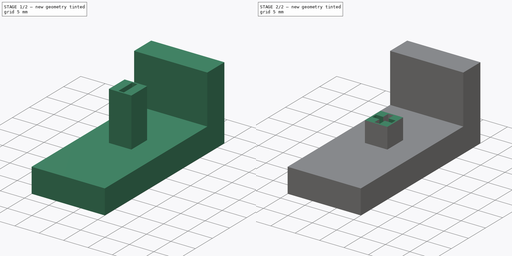
[diagram: build sequence overview — one tinted view per stage of 2, left to right]
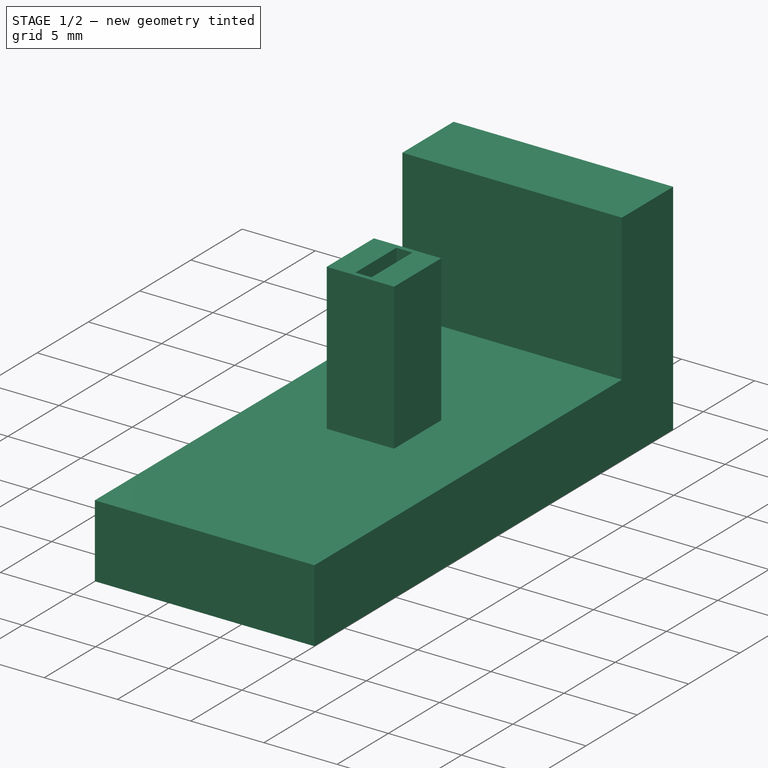
[diagram: stage 1 of 2 — iso view after this stage's code; geometry added in this stage tinted green]
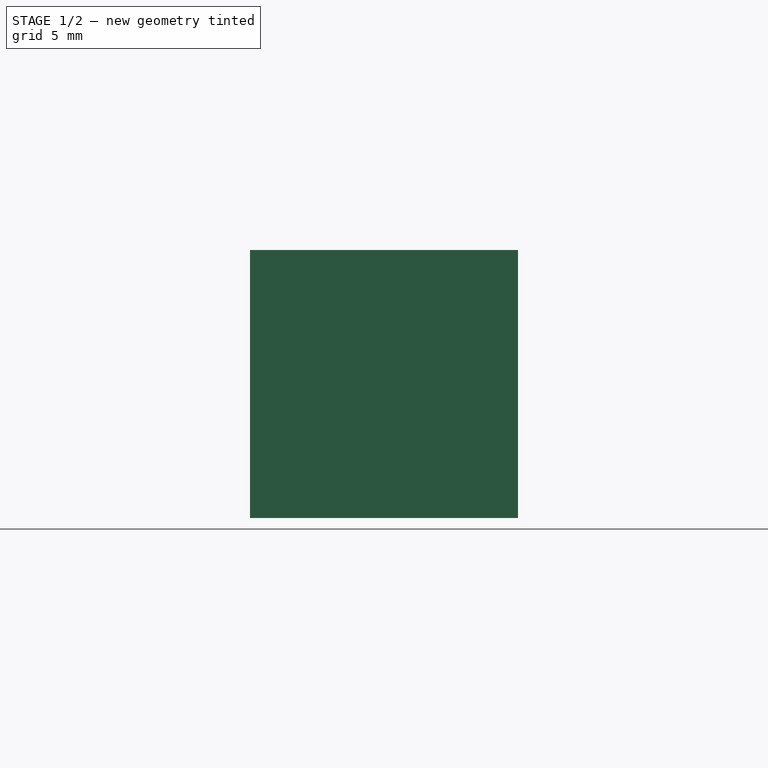
[diagram: stage 1 of 2 — front view after this stage's code; geometry added in this stage tinted green]
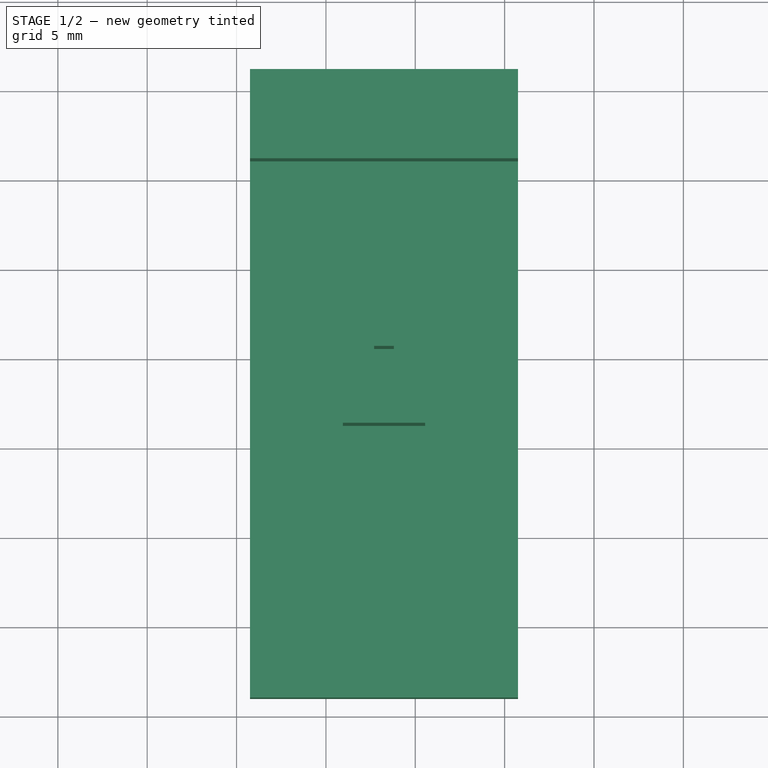
[diagram: stage 1 of 2 — top view after this stage's code; geometry added in this stage tinted green]
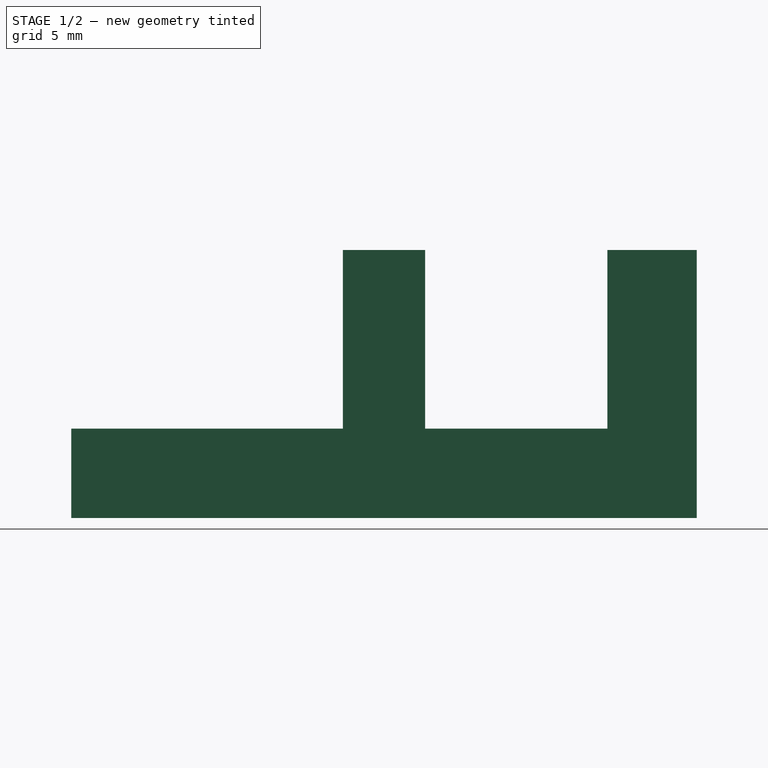
[diagram: stage 1 of 2 — right view after this stage's code; geometry added in this stage tinted green]
FCSTD DOCUMENT  (FreeCAD 0.20R29603 (Git))
Label: BlackKey
License: All rights reserved
LicenseURL: http://en.wikipedia.org/wiki/All_rights_reserved
objects: Sketcher::SketchObject×4, PartDesign::Pocket×3, PartDesign::Pad×1, PartDesign::Plane×1, PartDesign::Body×1
note: 14 computed .brp shape members not serialized (recipe doc carries the construction recipe); baked Part::Feature solids carry a one-line shape summary decoded from their .brp

FEATURE [Sketcher::SketchObject] Sketch
  FullyConstrained = true
  MapMode = 5
  Support = -> [XY_Plane]
  sketch-geometry (4):
    g0: LineSegment StartX=55.75 StartY=-79 StartZ=0 EndX=70.75 EndY=-79 EndZ=0
    g1: LineSegment StartX=70.75 StartY=-79 StartZ=0 EndX=70.75 EndY=-114 EndZ=0
    g2: LineSegment StartX=70.75 StartY=-114 StartZ=0 EndX=55.75 EndY=-114 EndZ=0
    g3: LineSegment StartX=55.75 StartY=-114 StartZ=0 EndX=55.75 EndY=-79 EndZ=0
  constraints (12):
    c: Coincident(g0,g1)
    c: Coincident(g1,g2)
    c: Coincident(g2,g3)
    c: Coincident(g3,g0)
    c: Horizontal(g0)
    c: Horizontal(g2)
    c: Vertical(g1)
    c: Vertical(g3)
    c: DistanceY(g0,g-1) = 79
    c: DistanceX(g-1,g0) = 55.75
    c: DistanceX(g-1,g1) = 70.75
    c: DistanceY(g1,g-1) = 114
FEATURE [PartDesign::Pad] Pad
  Direction = (0,0,1)
  Length = 15
  Length2 = 10
  Profile = -> Sketch
  ReferenceAxis = -> Sketch [N_Axis]
  Type = 0
FEATURE [PartDesign::Plane] DatumPlane
  Length = 118.823
  MapMode = 5
  Placement = pos=(0,0,15) rot=(0,0,1;0rad)
  ResizeMode = 0
  Support = -> [Pad]
  Width = 162.073
FEATURE [Sketcher::SketchObject] Sketch001
  FullyConstrained = true
  MapMode = 5
  Placement = pos=(0,0,15) rot=(0,0,1;0rad)
  Support = -> [DatumPlane]
  sketch-geometry (15):
    g0: LineSegment StartX=50 StartY=-120 StartZ=0 EndX=75 EndY=-120 EndZ=0
    g1: LineSegment StartX=75 StartY=-120 StartZ=0 EndX=75 EndY=-84 EndZ=0
    g2: LineSegment StartX=75 StartY=-84 StartZ=0 EndX=50 EndY=-84 EndZ=0
    g3: LineSegment StartX=50 StartY=-84 StartZ=0 EndX=50 EndY=-120 EndZ=0
    g4: LineSegment StartX=60.95 StartY=-94.2 StartZ=0 EndX=65.55 EndY=-94.2 EndZ=0
    g5: LineSegment StartX=65.55 StartY=-94.2 StartZ=0 EndX=65.55 EndY=-98.8 EndZ=0
    g6: LineSegment StartX=65.55 StartY=-98.8 StartZ=0 EndX=60.95 EndY=-98.8 EndZ=0
    g7: LineSegment StartX=60.95 StartY=-98.8 StartZ=0 EndX=60.95 EndY=-94.2 EndZ=0
    g8: GeomPoint X=63.25 Y=-96.5 Z=0
    g9: LineSegment StartX=62.7 StartY=-94.5 StartZ=0 EndX=63.8 EndY=-94.5 EndZ=0
    g10: LineSegment StartX=63.8 StartY=-94.5 StartZ=0 EndX=63.8 EndY=-98.5 EndZ=0
    g11: LineSegment StartX=63.8 StartY=-98.5 StartZ=0 EndX=62.7 EndY=-98.5 EndZ=0
    g12: LineSegment StartX=62.7 StartY=-98.5 StartZ=0 EndX=62.7 EndY=-94.5 EndZ=0
    g13: GeomPoint X=63.25 Y=-96.5 Z=0
    g14: GeomPoint X=63.25 Y=-96.5 Z=0
  constraints (40):
    c: Coincident(g0,g1)
    c: Coincident(g1,g2)
    c: Coincident(g2,g3)
    c: Coincident(g3,g0)
    c: Horizontal(g0)
    c: Horizontal(g2)
    c: Vertical(g1)
    c: Vertical(g3)
    c: DistanceX(g-1,g1) = 75
    c: DistanceY(g0,g-1) = 120
    c: DistanceY(g1,g-1) = 84
    c: DistanceX(g-1,g0) = 50
    c: Coincident(g4,g5)
    c: Coincident(g5,g6)
    c: Coincident(g6,g7)
    c: Coincident(g7,g4)
    c: Horizontal(g4)
    c: Horizontal(g6)
    c: Vertical(g5)
    c: Vertical(g7)
    c: DistanceX(g4,g4) = 4.6
    c: DistanceY(g5,g5) = 4.6
    c: Symmetric(g4,g6,g8)
    c: DistanceX(g-1,g8) = 63.25
    c: DistanceY(g8,g-1) = 96.5
    c: Coincident(g9,g10)
    c: Coincident(g10,g11)
    c: Coincident(g11,g12)
    c: Coincident(g12,g9)
    c: Horizontal(g9)
    c: Horizontal(g11)
    c: Vertical(g10)
    c: Vertical(g12)
    c: Symmetric(g9,g11,g13)
    c: DistanceX(g9,g9) = 1.1
    c: DistanceY(g10,g10) = 4
    c: DistanceX(g-1,g13) = 63.25
    c: DistanceY(g13,g-1) = 96.5
    c: DistanceX(g-1,g14) = 63.25
    c: DistanceY(g14,g-1) = 96.5
FEATURE [PartDesign::Pocket] Pocket
  BaseFeature = -> Pad
  Direction = (0,0,-1)
  Length = 10
  Length2 = 5
  Profile = -> Sketch001
  ReferenceAxis = -> Sketch001 [N_Axis]
  Type = 0
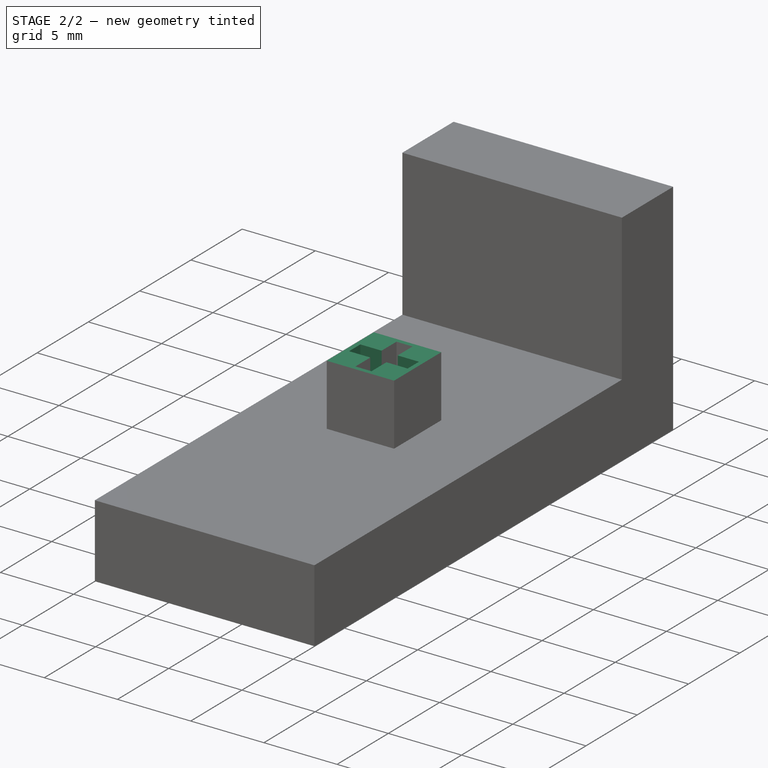
[diagram: stage 2 of 2 — iso view after this stage's code; geometry added in this stage tinted green]
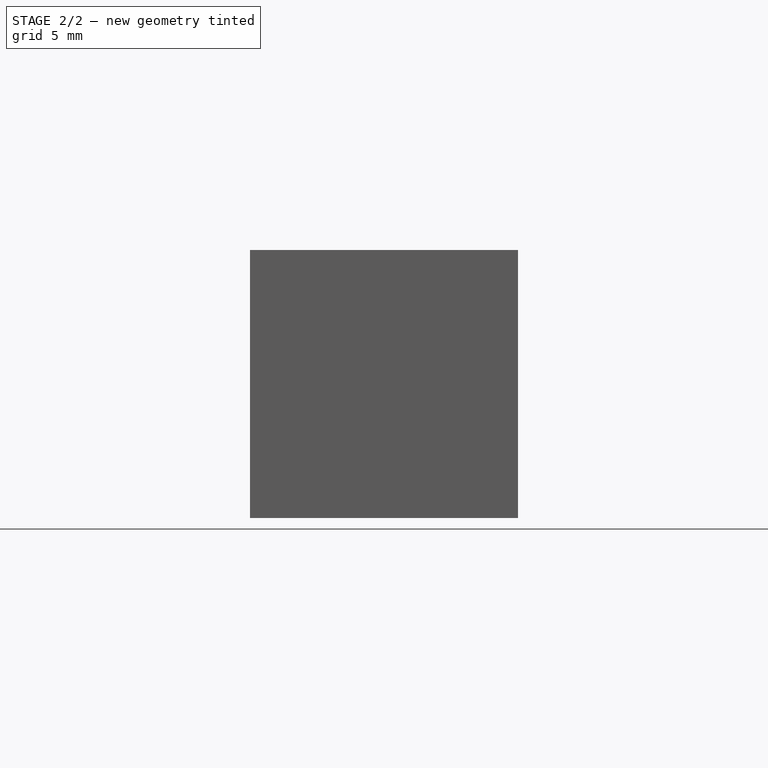
[diagram: stage 2 of 2 — front view after this stage's code; geometry added in this stage tinted green]
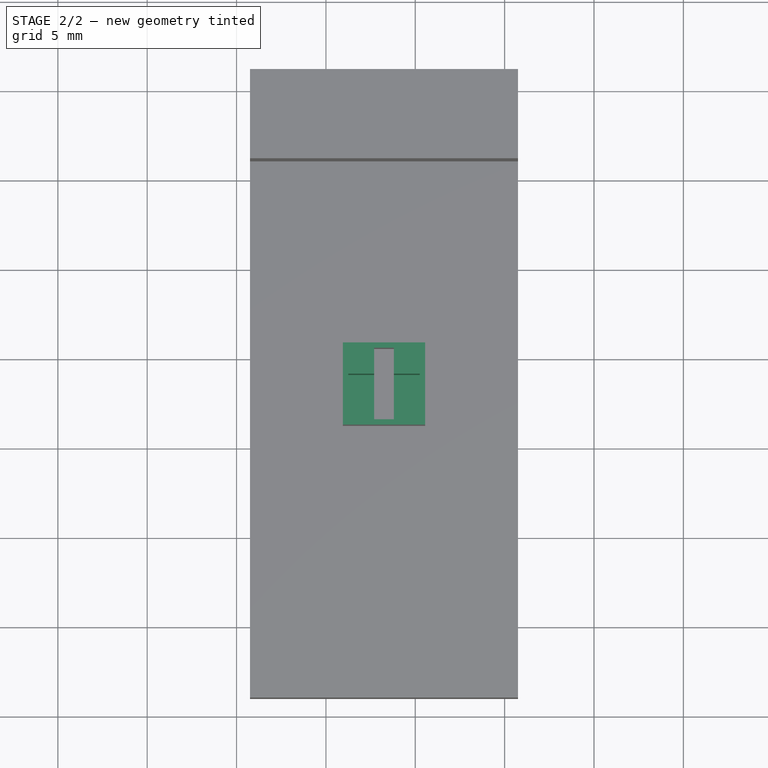
[diagram: stage 2 of 2 — top view after this stage's code; geometry added in this stage tinted green]
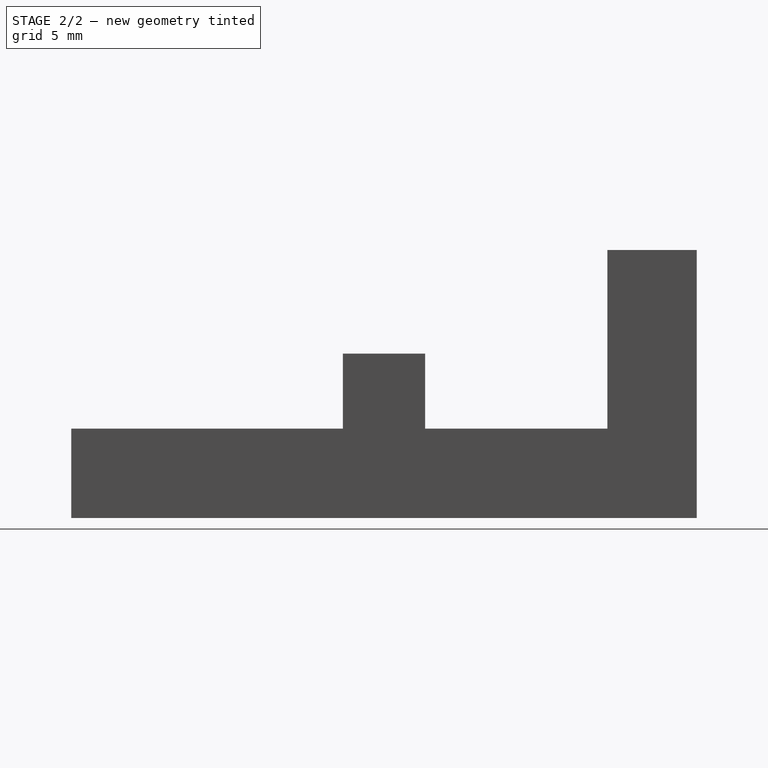
[diagram: stage 2 of 2 — right view after this stage's code; geometry added in this stage tinted green]
FEATURE [Sketcher::SketchObject] Sketch002
  FullyConstrained = true
  MapMode = 5
  Placement = pos=(0,0,15) rot=(0,0,1;0rad)
  Support = -> [DatumPlane]
  sketch-geometry (5):
    g0: LineSegment StartX=61.25 StartY=-95.95 StartZ=0 EndX=65.25 EndY=-95.95 EndZ=0
    g1: LineSegment StartX=65.25 StartY=-95.95 StartZ=0 EndX=65.25 EndY=-97.05 EndZ=0
    g2: LineSegment StartX=65.25 StartY=-97.05 StartZ=0 EndX=61.25 EndY=-97.05 EndZ=0
    g3: LineSegment StartX=61.25 StartY=-97.05 StartZ=0 EndX=61.25 EndY=-95.95 EndZ=0
    g4: GeomPoint X=63.25 Y=-96.5 Z=0
  constraints (13):
    c: Coincident(g0,g1)
    c: Coincident(g1,g2)
    c: Coincident(g2,g3)
    c: Coincident(g3,g0)
    c: Horizontal(g0)
    c: Horizontal(g2)
    c: Vertical(g1)
    c: Vertical(g3)
    c: Symmetric(g2,g0,g4)
    c: DistanceY(g3,g3) = 1.1
    c: DistanceX(g0,g0) = 4
    c: DistanceX(g-1,g4) = 63.25
    c: DistanceY(g4,g-1) = 96.5
FEATURE [PartDesign::Pocket] Pocket001
  BaseFeature = -> Pocket
  Direction = (0,0,-1)
  Length = 10
  Length2 = 5
  Profile = -> Sketch002
  ReferenceAxis = -> Sketch002 [N_Axis]
  Type = 0
FEATURE [Sketcher::SketchObject] Sketch003
  FullyConstrained = true
  MapMode = 5
  Placement = pos=(0,0,15) rot=(0,0,1;0rad)
  Support = -> [DatumPlane]
  sketch-geometry (4):
    g0: LineSegment StartX=60 StartY=-93 StartZ=0 EndX=66 EndY=-93 EndZ=0
    g1: LineSegment StartX=66 StartY=-93 StartZ=0 EndX=66 EndY=-99 EndZ=0
    g2: LineSegment StartX=66 StartY=-99 StartZ=0 EndX=60 EndY=-99 EndZ=0
    g3: LineSegment StartX=60 StartY=-99 StartZ=0 EndX=60 EndY=-93 EndZ=0
  constraints (12):
    c: Coincident(g0,g1)
    c: Coincident(g1,g2)
    c: Coincident(g2,g3)
    c: Coincident(g3,g0)
    c: Horizontal(g0)
    c: Horizontal(g2)
    c: Vertical(g1)
    c: Vertical(g3)
    c: DistanceY(g0,g-1) = 93
    c: DistanceX(g-1,g0) = 60
    c: DistanceY(g1,g-1) = 99
    c: DistanceX(g-1,g1) = 66
FEATURE [PartDesign::Pocket] Pocket002
  BaseFeature = -> Pocket001
  Direction = (0,0,-1)
  Length = 5.8
  Length2 = 5
  Profile = -> Sketch003
  ReferenceAxis = -> Sketch003 [N_Axis]
  Type = 0
FEATURE [PartDesign::Body] Body
  Group = -> [Sketch,Pad,DatumPlane,Sketch001,Pocket,Sketch002,Pocket001,Sketch003,Pocket002]
  Origin = -> Origin
  Tip = -> Pocket002
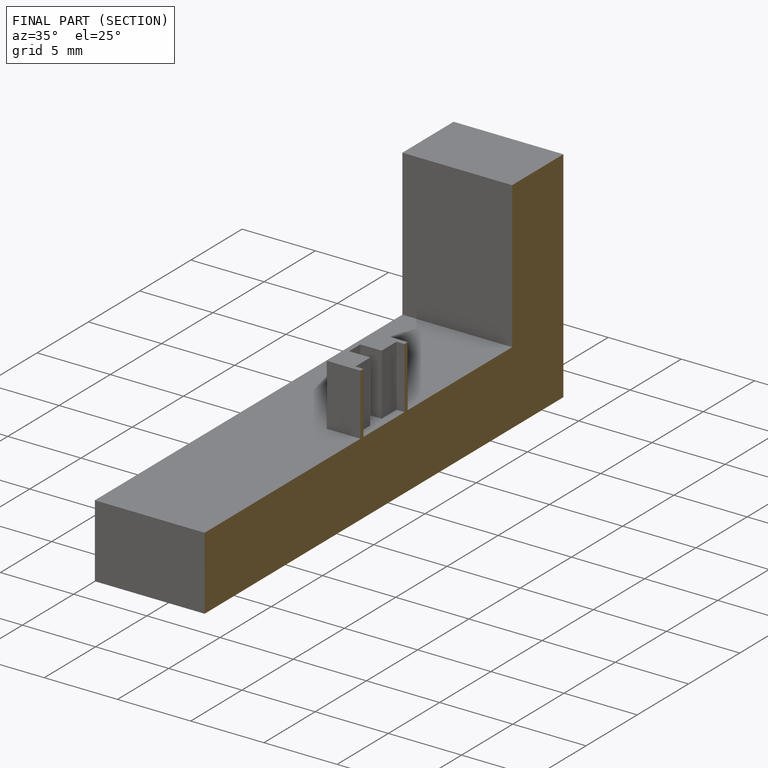
[diagram: finished part — half-section view (interior)]
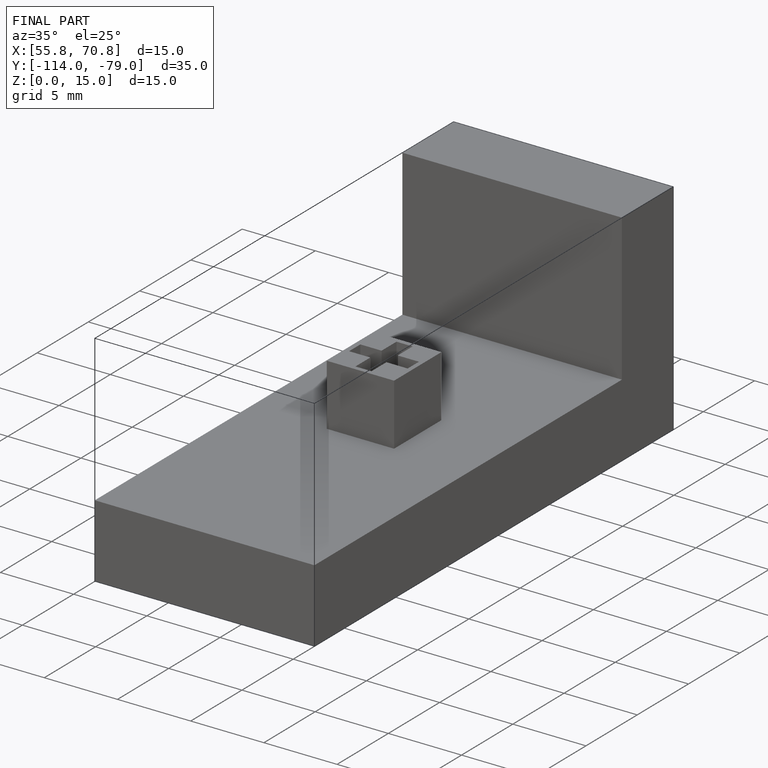
[diagram: finished part — iso view with bounding-box wireframe]
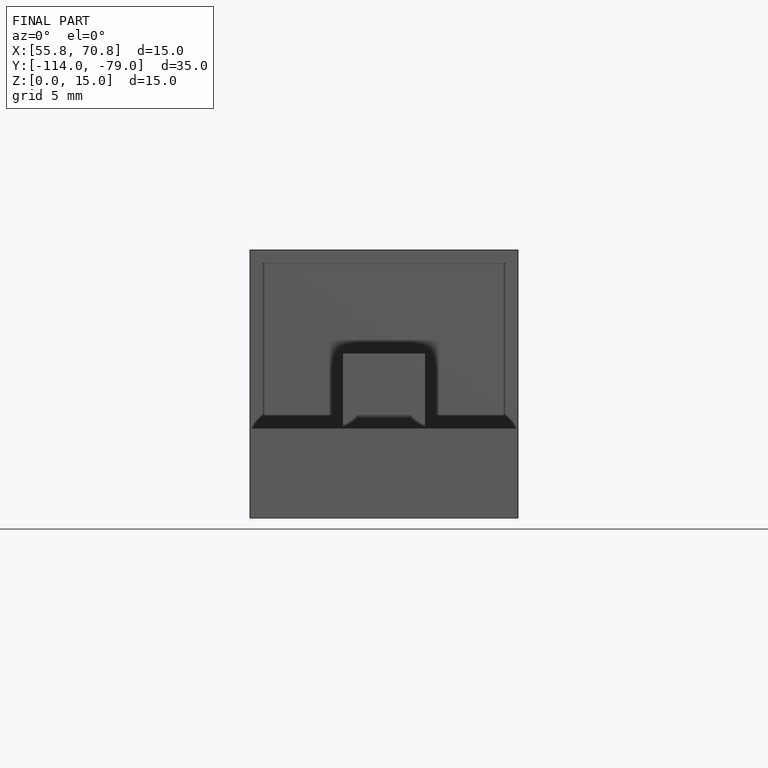
[diagram: finished part — front view with bounding-box wireframe]
